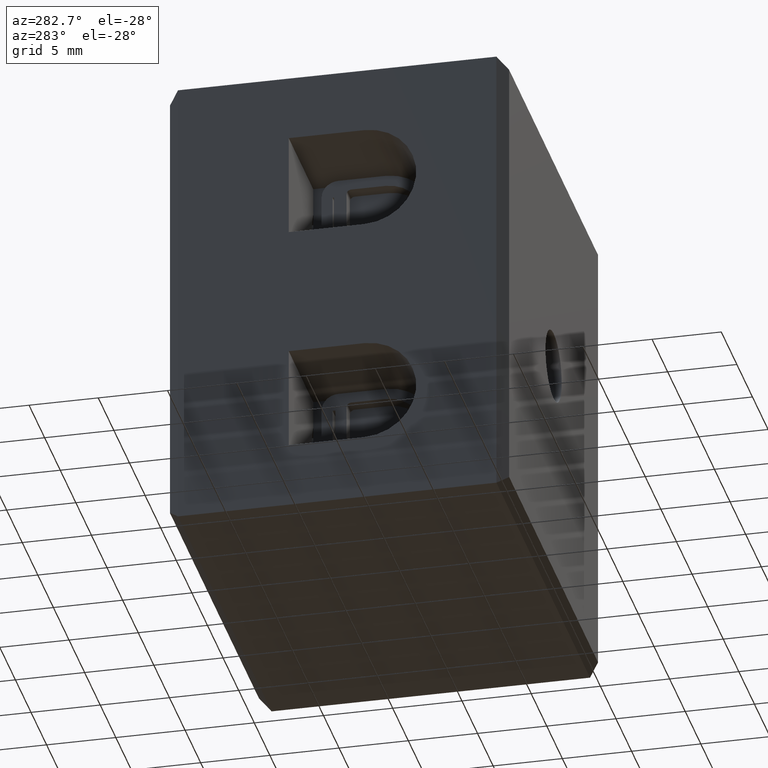
[diagram: clean part render]
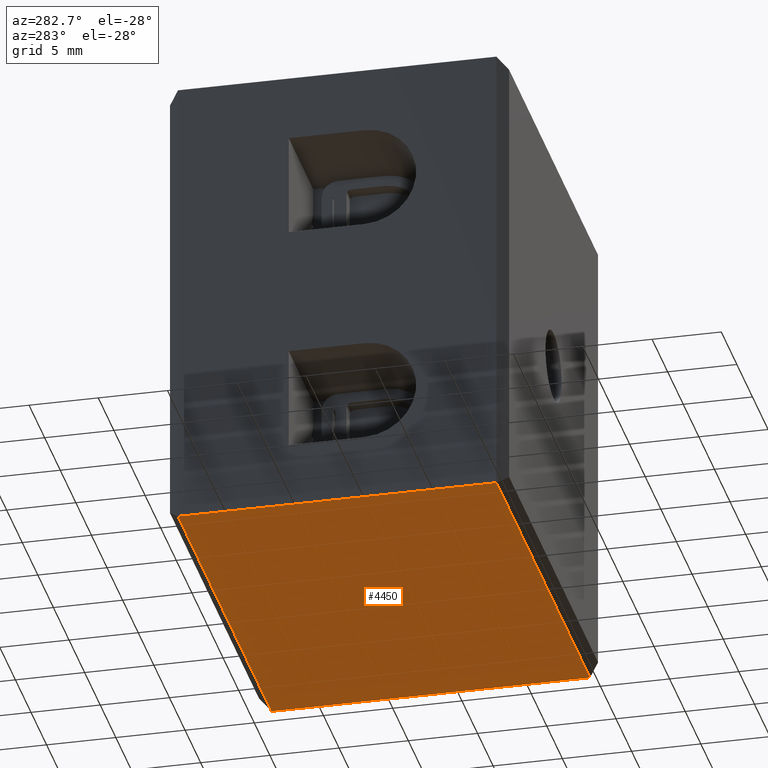
[diagram: same view with one face highlighted and labeled with its STEP entity id]
A machine part, auxiliary view. The second image highlights one B-rep face of the part: STEP entity #4450.
In plain terms, the highlighted planar face has unit normal (0, 0, 1).
Its self-contained STEP definition (entity closure, byte-faithful):
#15 = CARTESIAN_POINT ( 'NONE',  ( 30.00000000000000000, 23.75000000000000000, -34.00000000000000000 ) ) ;
#49 = CARTESIAN_POINT ( 'NONE',  ( 30.00000000000000000, 0.7499999999999938900, -34.00000000000000000 ) ) ;
#54 = CARTESIAN_POINT ( 'NONE',  ( -5.886878983417419900E-016, 0.7499999999999943400, -34.00000000000000000 ) ) ;
#83 = CARTESIAN_POINT ( 'NONE',  ( 4.856322230924661000E-017, 23.75000000000000000, -34.00000000000000000 ) ) ;
#1325 = VERTEX_POINT ( 'NONE', #54 ) ;
#1327 = VERTEX_POINT ( 'NONE', #49 ) ;
#1360 = VERTEX_POINT ( 'NONE', #15 ) ;
#1397 = VERTEX_POINT ( 'NONE', #83 ) ;
#1896 = ORIENTED_EDGE ( 'NONE', *, *, #5065, .T. ) ;
#1938 = ORIENTED_EDGE ( 'NONE', *, *, #5024, .F. ) ;
#1959 = ORIENTED_EDGE ( 'NONE', *, *, #5093, .F. ) ;
#1962 = ORIENTED_EDGE ( 'NONE', *, *, #5086, .F. ) ;
#2666 = PLANE ( 'NONE',  #8104 ) ;
#2667 = CARTESIAN_POINT ( 'NONE',  ( 0.0000000000000000000, 24.50000000000000000, -34.00000000000000000 ) ) ;
#2668 = DIRECTION ( 'NONE',  ( 0.0000000000000000000, 0.0000000000000000000, 1.000000000000000000 ) ) ;
#2669 = DIRECTION ( 'NONE',  ( 1.000000000000000000, 0.0000000000000000000, -0.0000000000000000000 ) ) ;
#2673 = FACE_OUTER_BOUND ( 'NONE', #4030, .T. ) ;
#4030 = EDGE_LOOP ( 'NONE', ( #1962, #1959, #1896, #1938 ) ) ;
#4450 = ADVANCED_FACE ( 'NONE', ( #2673 ), #2666, .F. ) ;
#5024 = EDGE_CURVE ( 'NONE', #1325, #1327, #6357, .T. ) ;
#5065 = EDGE_CURVE ( 'NONE', #1360, #1327, #6448, .T. ) ;
#5086 = EDGE_CURVE ( 'NONE', #1397, #1325, #6550, .T. ) ;
#5093 = EDGE_CURVE ( 'NONE', #1360, #1397, #6561, .T. ) ;
#6357 = LINE ( 'NONE', #6391, #9017 ) ;
#6380 = DIRECTION ( 'NONE',  ( 1.000000000000000000, 0.0000000000000000000, 0.0000000000000000000 ) ) ;
#6391 = CARTESIAN_POINT ( 'NONE',  ( 0.0000000000000000000, 0.7499999999999937800, -34.00000000000000000 ) ) ;
#6448 = LINE ( 'NONE', #6474, #9078 ) ;
#6474 = CARTESIAN_POINT ( 'NONE',  ( 30.00000000000000000, 24.50000000000000000, -34.00000000000000000 ) ) ;
#6477 = DIRECTION ( 'NONE',  ( -0.0000000000000000000, -1.000000000000000000, 0.0000000000000000000 ) ) ;
#6536 = DIRECTION ( 'NONE',  ( 0.0000000000000000000, -1.000000000000000000, -0.0000000000000000000 ) ) ;
#6550 = LINE ( 'NONE', #6552, #9194 ) ;
#6552 = CARTESIAN_POINT ( 'NONE',  ( 2.710505431213761100E-017, 24.50000000000000000, -34.00000000000000000 ) ) ;
#6561 = LINE ( 'NONE', #6563, #9225 ) ;
#6563 = CARTESIAN_POINT ( 'NONE',  ( 0.0000000000000000000, 23.75000000000000000, -34.00000000000000000 ) ) ;
#6570 = DIRECTION ( 'NONE',  ( -1.000000000000000000, -0.0000000000000000000, 0.0000000000000000000 ) ) ;
#8104 = AXIS2_PLACEMENT_3D ( 'NONE', #2667, #2668, #2669 ) ;
#9017 = VECTOR ( 'NONE', #6380, 1000.000000000000000 ) ;
#9078 = VECTOR ( 'NONE', #6477, 1000.000000000000000 ) ;
#9194 = VECTOR ( 'NONE', #6536, 1000.000000000000000 ) ;
#9225 = VECTOR ( 'NONE', #6570, 1000.000000000000000 ) ;